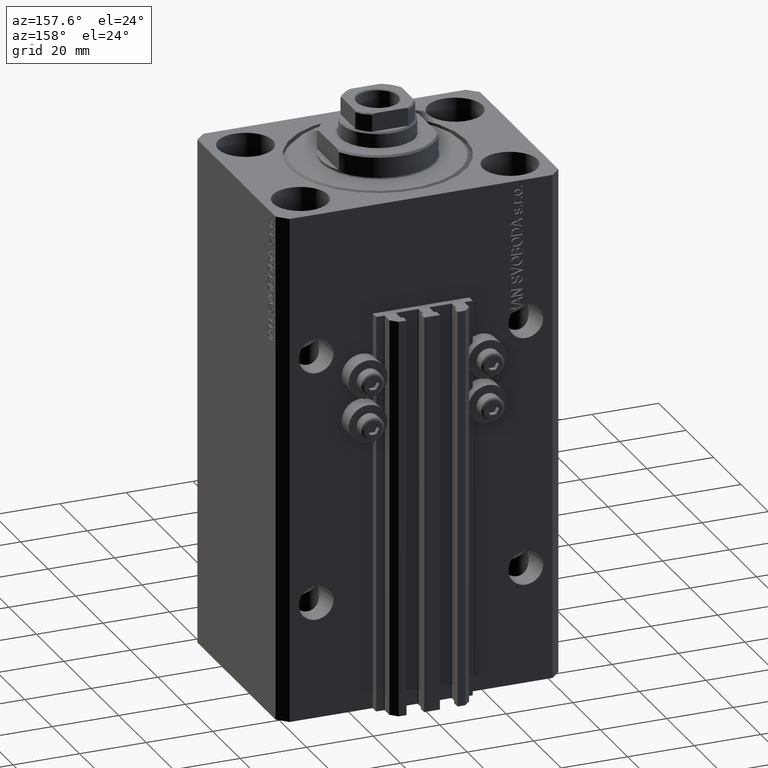
[diagram: clean part render]
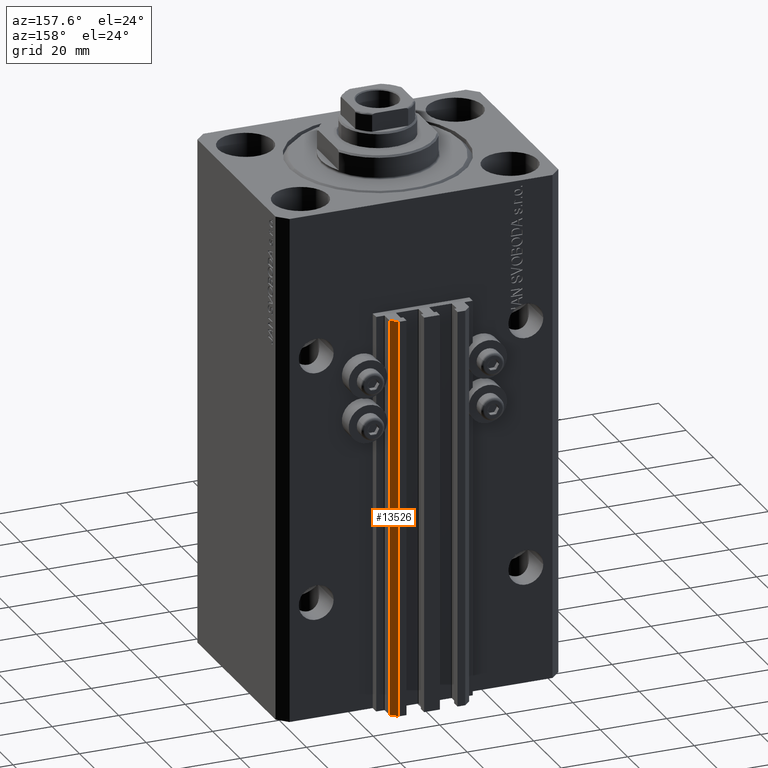
[diagram: same view with one face highlighted and labeled with its STEP entity id]
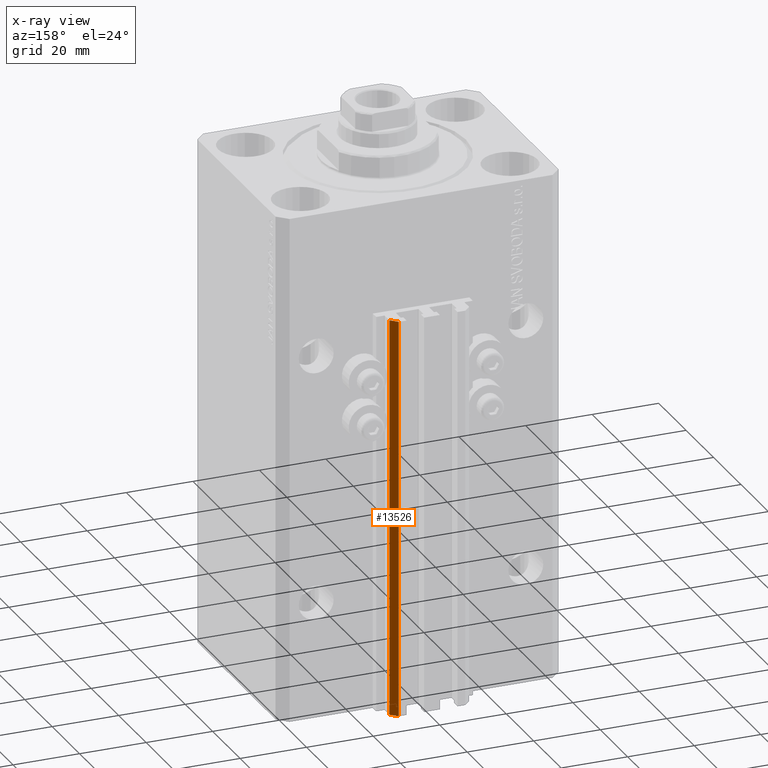
[diagram: x-ray of the same camera — body ghosted, the highlighted face saturated]
A machine part, auxiliary view. The second image highlights one B-rep face of the part: STEP entity #13526.
The next image is the same camera in x-ray: the body ghosted, the highlighted face saturated — about 0% of this face is hidden behind the body in this view.
In plain terms, the highlighted planar face has unit normal (0.7071, 0.7071, 0).
Its self-contained STEP definition (entity closure, byte-faithful):
#704 = EDGE_CURVE ( 'NONE', #10589, #10132, #17279, .T. ) ;
#2316 = FACE_OUTER_BOUND ( 'NONE', #29653, .T. ) ;
#4973 = ORIENTED_EDGE ( 'NONE', *, *, #41396, .F. ) ;
#6048 = CARTESIAN_POINT ( 'NONE',  ( 12.00000000000000000, 37.50000000000002132, -153.0000000000000000 ) ) ;
#8764 = DIRECTION ( 'NONE',  ( 0.000000000000000000, 0.000000000000000000, 1.000000000000000000 ) ) ;
#8859 = CARTESIAN_POINT ( 'NONE',  ( 9.999999999999998224, 39.50000000000002132, -153.0000000000000000 ) ) ;
#10000 = CARTESIAN_POINT ( 'NONE',  ( 12.00000000000000000, 37.50000000000002132, -33.00000000000000000 ) ) ;
#10119 = EDGE_CURVE ( 'NONE', #15269, #29584, #28989, .T. ) ;
#10132 = VERTEX_POINT ( 'NONE', #24865 ) ;
#10589 = VERTEX_POINT ( 'NONE', #15511 ) ;
#13279 = DIRECTION ( 'NONE',  ( 0.7071067811865475727, 0.7071067811865475727, -0.000000000000000000 ) ) ;
#13526 = ADVANCED_FACE ( 'NONE', ( #2316 ), #30803, .T. ) ;
#13667 = CARTESIAN_POINT ( 'NONE',  ( 12.00000000000000000, 37.50000000000002132, -153.0000000000000000 ) ) ;
#14035 = VECTOR ( 'NONE', #36292, 1000.000000000000114 ) ;
#15269 = VERTEX_POINT ( 'NONE', #6048 ) ;
#15344 = CARTESIAN_POINT ( 'NONE',  ( 9.999999999999998224, 39.50000000000002132, -153.0000000000000000 ) ) ;
#15511 = CARTESIAN_POINT ( 'NONE',  ( 12.00000000000000000, 37.50000000000002132, -33.00000000000000000 ) ) ;
#16199 = CARTESIAN_POINT ( 'NONE',  ( 12.00000000000000000, 37.50000000000002132, -153.0000000000000000 ) ) ;
#16583 = VECTOR ( 'NONE', #31487, 1000.000000000000000 ) ;
#17279 = LINE ( 'NONE', #10000, #27823 ) ;
#19343 = EDGE_CURVE ( 'NONE', #29584, #10132, #46299, .T. ) ;
#20089 = DIRECTION ( 'NONE',  ( -0.7071067811865474617, 0.7071067811865474617, 0.000000000000000000 ) ) ;
#22380 = ORIENTED_EDGE ( 'NONE', *, *, #19343, .T. ) ;
#24837 = ORIENTED_EDGE ( 'NONE', *, *, #10119, .T. ) ;
#24865 = CARTESIAN_POINT ( 'NONE',  ( 9.999999999999998224, 39.50000000000002132, -33.00000000000000000 ) ) ;
#26302 = CARTESIAN_POINT ( 'NONE',  ( 12.00000000000000000, 37.50000000000002132, -153.0000000000000000 ) ) ;
#26690 = VECTOR ( 'NONE', #8764, 1000.000000000000000 ) ;
#27351 = AXIS2_PLACEMENT_3D ( 'NONE', #16199, #13279, #20089 ) ;
#27433 = ORIENTED_EDGE ( 'NONE', *, *, #704, .F. ) ;
#27823 = VECTOR ( 'NONE', #39190, 1000.000000000000114 ) ;
#28989 = LINE ( 'NONE', #13667, #14035 ) ;
#29584 = VERTEX_POINT ( 'NONE', #15344 ) ;
#29653 = EDGE_LOOP ( 'NONE', ( #27433, #4973, #24837, #22380 ) ) ;
#30803 = PLANE ( 'NONE',  #27351 ) ;
#31487 = DIRECTION ( 'NONE',  ( 0.000000000000000000, 0.000000000000000000, 1.000000000000000000 ) ) ;
#36292 = DIRECTION ( 'NONE',  ( -0.7071067811865474617, 0.7071067811865474617, 0.000000000000000000 ) ) ;
#37491 = LINE ( 'NONE', #26302, #26690 ) ;
#39190 = DIRECTION ( 'NONE',  ( -0.7071067811865474617, 0.7071067811865474617, 0.000000000000000000 ) ) ;
#41396 = EDGE_CURVE ( 'NONE', #15269, #10589, #37491, .T. ) ;
#46299 = LINE ( 'NONE', #8859, #16583 ) ;